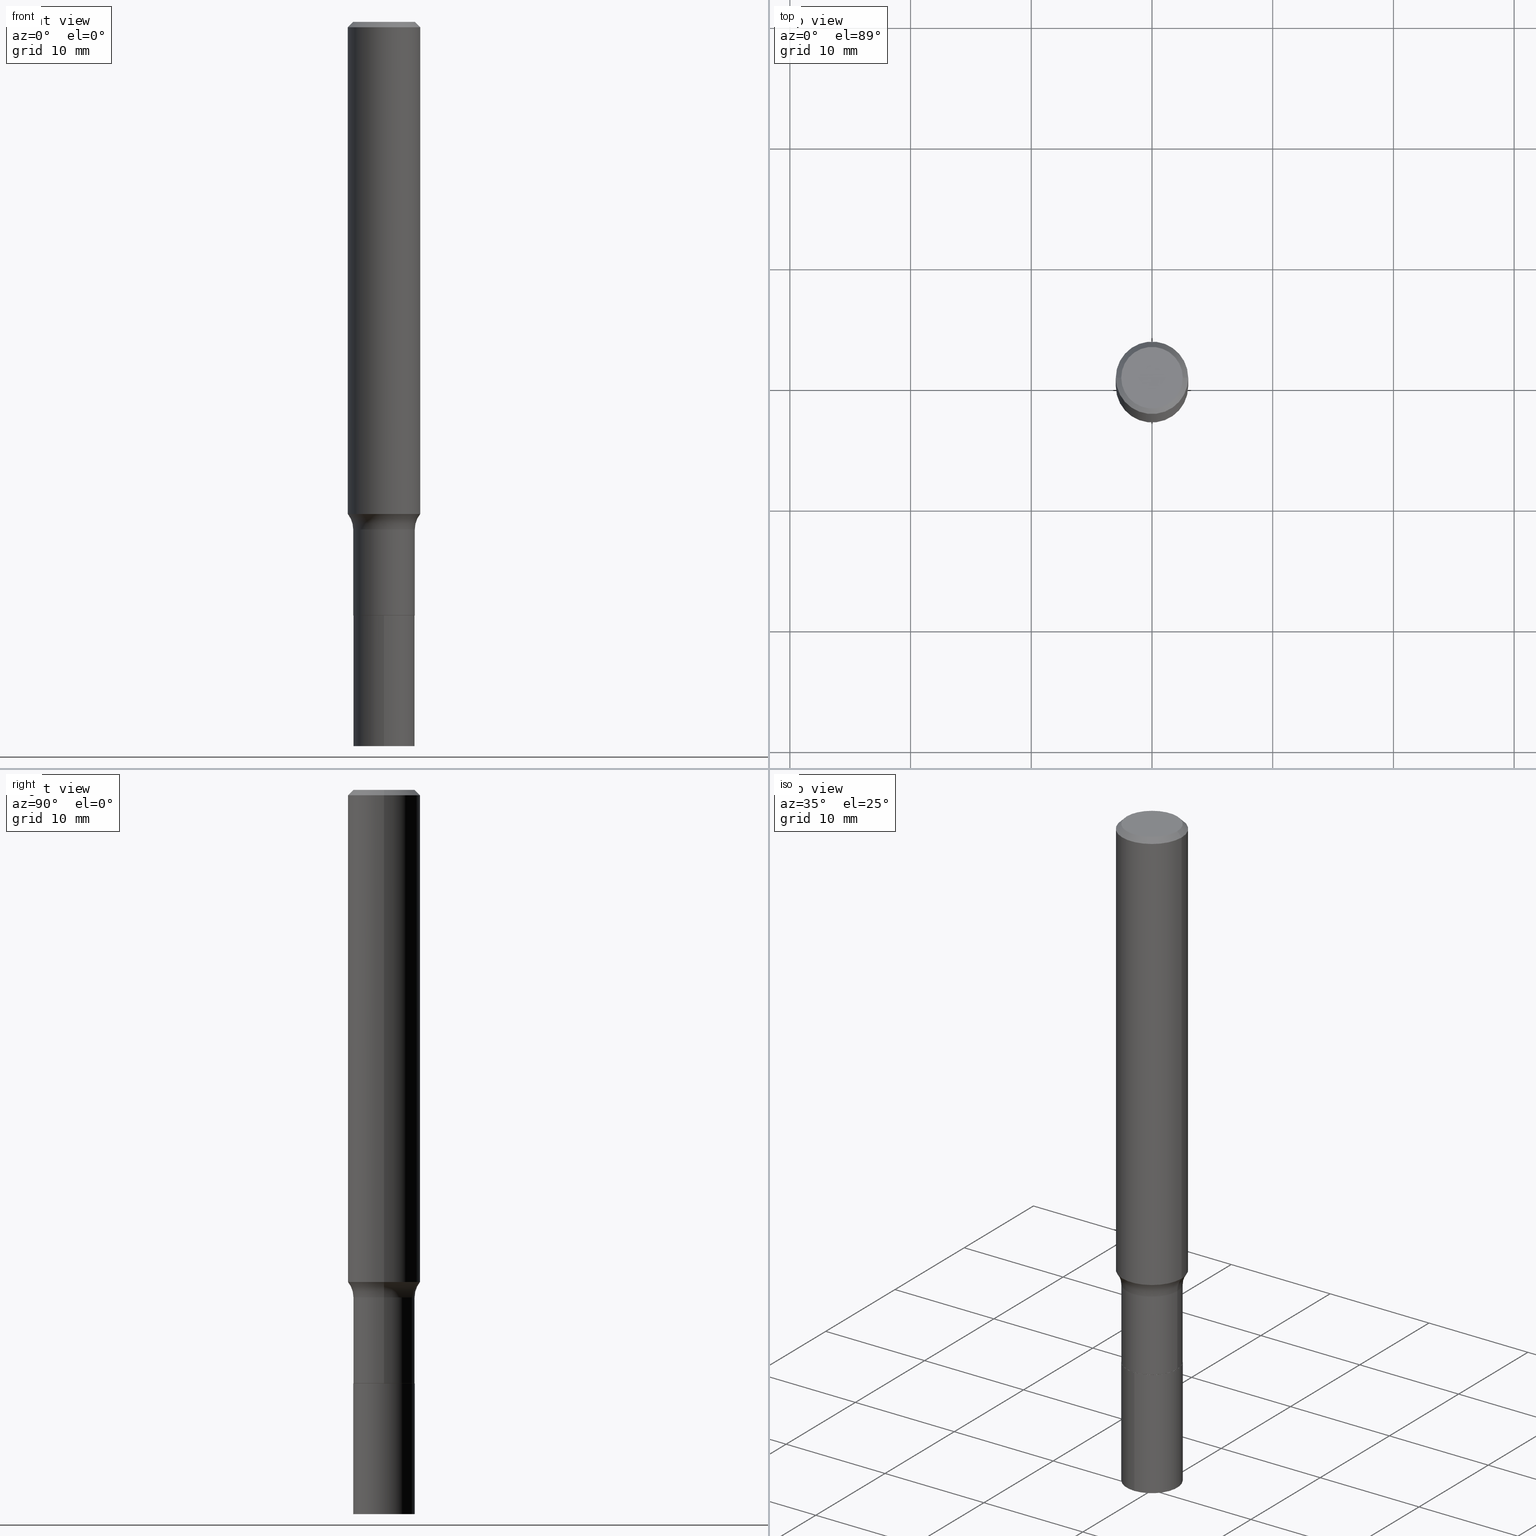
[diagram: canonical four-view strip — front | top / right | iso, engineering-drawing reading convention]
A machine part, canonical four-view strip (front | top / right | iso — engineering-drawing reading convention). The complete STEP part file that produces these views, byte-faithful:
ISO-10303-21;
HEADER;
FILE_DESCRIPTION (( 'STEP AP203' ),
    '1' );
FILE_NAME ('67096.STEP',
    '2024-04-19T15:50:10',
    ( '' ),
    ( '' ),
    'SwSTEP 2.0',
    'SolidWorks 2023',
    '' );
FILE_SCHEMA (( 'CONFIG_CONTROL_DESIGN' ));
ENDSEC;

DATA;
#1 = FACE_OUTER_BOUND ( 'NONE', #98, .T. ) ;
#2 = EDGE_CURVE ( 'NONE', #377, #160, #199, .T. ) ;
#3 = CARTESIAN_POINT ( 'NONE',  ( 0.000000000000000000, 0.000000000000000000, 0.000000000000000000 ) ) ;
#4 = AXIS2_PLACEMENT_3D ( 'NONE', #194, #254, #401 ) ;
#5 = CARTESIAN_POINT ( 'NONE',  ( 0.1004000000000000031, -7.459549880438378994E-15, -1.935700000000000420 ) ) ;
#6 =( CONVERSION_BASED_UNIT ( 'INCH', #230 ) LENGTH_UNIT ( ) NAMED_UNIT ( #173 ) );
#7 = ORIENTED_EDGE ( 'NONE', *, *, #166, .T. ) ;
#8 = APPLICATION_PROTOCOL_DEFINITION ( 'international standard', 'config_control_design', 1994, #9 ) ;
#9 = APPLICATION_CONTEXT ( 'configuration controlled 3d designs of mechanical parts and assemblies' ) ;
#10 = CARTESIAN_POINT ( 'NONE',  ( 5.792487377357313463E-29, -8.224949339710422363E-15, -2.362200000000000522 ) ) ;
#11 = COORDINATED_UNIVERSAL_TIME_OFFSET ( 5, 0, .BEHIND. ) ;
#12 = FACE_OUTER_BOUND ( 'NONE', #442, .T. ) ;
#13 = CC_DESIGN_DATE_AND_TIME_ASSIGNMENT ( #116, #333, ( #50 ) ) ;
#14 = APPROVAL_DATE_TIME ( #256, #335 ) ;
#15 = PERSON_AND_ORGANIZATION ( #341, #212 ) ;
#16 = ORIENTED_EDGE ( 'NONE', *, *, #452, .F. ) ;
#17 = DIRECTION ( 'NONE',  ( 1.000000000000000000, -6.982962677686266711E-15, 4.876176775795935793E-29 ) ) ;
#18 = ORIENTED_EDGE ( 'NONE', *, *, #221, .T. ) ;
#19 = PRODUCT_DEFINITION_SHAPE ( 'NONE', 'NONE',  #50 ) ;
#20 = CARTESIAN_POINT ( 'NONE',  ( 7.133849067031929695E-16, 0.1003999999999917597, -2.362200000000000966 ) ) ;
#21 = VECTOR ( 'NONE', #466, 39.37007874015748143 ) ;
#22 = PRODUCT_DEFINITION_FORMATION_WITH_SPECIFIED_SOURCE ( 'ANY', '', #117, .NOT_KNOWN. ) ;
#23 = CIRCLE ( 'NONE', #4, 0.1004000000000000031 ) ;
#24 = VERTEX_POINT ( 'NONE', #123 ) ;
#25 = PLANE ( 'NONE',  #306 ) ;
#26 = ORIENTED_EDGE ( 'NONE', *, *, #354, .F. ) ;
#27 = FACE_OUTER_BOUND ( 'NONE', #461, .T. ) ;
#28 = ADVANCED_FACE ( 'NONE', ( #198 ), #170, .F. ) ;
#29 = ORIENTED_EDGE ( 'NONE', *, *, #298, .T. ) ;
#30 = CARTESIAN_POINT ( 'NONE',  ( 4.734916702535661881E-29, -6.760206168268099421E-15, -1.936200000000000143 ) ) ;
#31 = AXIS2_PLACEMENT_3D ( 'NONE', #419, #351, #233 ) ;
#32 = EDGE_LOOP ( 'NONE', ( #350, #239 ) ) ;
#33 = LINE ( 'NONE', #211, #185 ) ;
#34 = ORIENTED_EDGE ( 'NONE', *, *, #36, .F. ) ;
#35 = DIRECTION ( 'NONE',  ( 1.000000000000000000, -6.982962677686267499E-15, 0.000000000000000000 ) ) ;
#36 = EDGE_CURVE ( 'NONE', #160, #458, #334, .T. ) ;
#37 = AXIS2_PLACEMENT_3D ( 'NONE', #277, #386, #451 ) ;
#38 = TOROIDAL_SURFACE ( 'NONE', #200, 0.1803999999999999770, 0.07999999999999996003 ) ;
#39 = DIRECTION ( 'NONE',  ( 1.000000000000000000, -6.982962677686262766E-15, 0.000000000000000000 ) ) ;
#40 = VERTEX_POINT ( 'NONE', #5 ) ;
#41 = CARTESIAN_POINT ( 'NONE',  ( 8.017399369065212404E-46, -1.144672146802464325E-31, -3.278471329827401435E-17 ) ) ;
#42 = ADVANCED_FACE ( 'NONE', ( #12 ), #404, .T. ) ;
#43 = FACE_OUTER_BOUND ( 'NONE', #222, .T. ) ;
#44 = ORIENTED_EDGE ( 'NONE', *, *, #36, .T. ) ;
#45 = COORDINATED_UNIVERSAL_TIME_OFFSET ( 5, 0, .BEHIND. ) ;
#46 = ORIENTED_EDGE ( 'NONE', *, *, #467, .T. ) ;
#47 = VERTEX_POINT ( 'NONE', #301 ) ;
#48 = LINE ( 'NONE', #82, #418 ) ;
#49 = CYLINDRICAL_SURFACE ( 'NONE', #151, 0.1004000000000000031 ) ;
#50 = PRODUCT_DEFINITION ( 'UNKNOWN', '', #22, #323 ) ;
#51 = PERSON_AND_ORGANIZATION_ROLE ( 'classification_officer' ) ;
#52 = APPROVAL_DATE_TIME ( #437, #430 ) ;
#53 = CIRCLE ( 'NONE', #281, 0.1003999999999999893 ) ;
#54 = LOCAL_TIME ( 11, 50, 10.00000000000000000, #228 ) ;
#55 = ORIENTED_EDGE ( 'NONE', *, *, #322, .F. ) ;
#56 = CARTESIAN_POINT ( 'NONE',  ( 4.047495421117020390E-29, -5.778750763919291461E-15, -1.655100000000000238 ) ) ;
#57 = CALENDAR_DATE ( 2024, 19, 4 ) ;
#58 = EDGE_CURVE ( 'NONE', #329, #40, #229, .T. ) ;
#59 = MANIFOLD_SOLID_BREP ( 'Body-Move/Copy2[2]', #150 ) ;
#60 = DIRECTION ( 'NONE',  ( 1.000000000000000000, -6.982962677686268288E-15, 0.000000000000000000 ) ) ;
#61 = EDGE_LOOP ( 'NONE', ( #94, #7, #331, #420 ) ) ;
#62 = AXIS2_PLACEMENT_3D ( 'NONE', #197, #327, #255 ) ;
#63 = DIRECTION ( 'NONE',  ( 2.445468806185136597E-29, -3.491481338843145583E-15, -1.000000000000000000 ) ) ;
#64 = AXIS2_PLACEMENT_3D ( 'NONE', #56, #240, #132 ) ;
#65 = ORIENTED_EDGE ( 'NONE', *, *, #396, .F. ) ;
#66 = DIRECTION ( 'NONE',  ( -6.982962677686265922E-15, -1.000000000000000000, 3.438364252212024500E-15 ) ) ;
#67 = ORIENTED_EDGE ( 'NONE', *, *, #58, .T. ) ;
#68 = DIRECTION ( 'NONE',  ( -2.445468806185136597E-29, 3.491481338843145583E-15, 1.000000000000000000 ) ) ;
#69 = CARTESIAN_POINT ( 'NONE',  ( -0.1181000000000000105, -1.993537154280403613E-15, -0.01771500000000011954 ) ) ;
#70 = CONICAL_SURFACE ( 'NONE', #232, 0.1181000000000000105, 0.7853981633974477239 ) ;
#71 = EDGE_LOOP ( 'NONE', ( #380, #336, #272, #388 ) ) ;
#72 = DIRECTION ( 'NONE',  ( -6.982962677686266711E-15, -1.000000000000000000, 2.720964137115799877E-15 ) ) ;
#73 = ADVANCED_FACE ( 'NONE', ( #88 ), #259, .T. ) ;
#74 = DIRECTION ( 'NONE',  ( 1.000000000000000000, -6.982962677686266711E-15, 4.875668750515089058E-29 ) ) ;
#75 = DIRECTION ( 'NONE',  ( 1.000000000000000000, -6.982962677686264344E-15, 0.000000000000000000 ) ) ;
#76 = AXIS2_PLACEMENT_3D ( 'NONE', #270, #169, #304 ) ;
#77 = AXIS2_PLACEMENT_3D ( 'NONE', #41, #102, #188 ) ;
#78 = CARTESIAN_POINT ( 'NONE',  ( 0.000000000000000000, 0.000000000000000000, 0.000000000000000000 ) ) ;
#79 = APPROVAL_DATE_TIME ( #110, #231 ) ;
#80 = ORIENTED_EDGE ( 'NONE', *, *, #2, .T. ) ;
#81 = VECTOR ( 'NONE', #137, 39.37007874015748143 ) ;
#82 = CARTESIAN_POINT ( 'NONE',  ( -0.1003999999999999893, 7.133849067031405103E-16, -4.938610830615924293E-30 ) ) ;
#83 = DIRECTION ( 'NONE',  ( -2.482560269534391685E-29, 3.438364252212024106E-15, 1.000000000000000000 ) ) ;
#84 = ADVANCED_FACE ( 'NONE', ( #153 ), #49, .T. ) ;
#85 = PERSON_AND_ORGANIZATION ( #341, #212 ) ;
#86 = VERTEX_POINT ( 'NONE', #126 ) ;
#87 = MECHANICAL_CONTEXT ( 'NONE', #453, 'mechanical' ) ;
#88 = FACE_OUTER_BOUND ( 'NONE', #138, .T. ) ;
#89 = AXIS2_PLACEMENT_3D ( 'NONE', #143, #317, #39 ) ;
#90 = CC_DESIGN_APPROVAL ( #335, ( #443 ) ) ;
#91 = EDGE_LOOP ( 'NONE', ( #34, #305, #213, #26 ) ) ;
#92 = ADVANCED_FACE ( 'NONE', ( #266 ), #267, .T. ) ;
#93 = DIRECTION ( 'NONE',  ( 2.438088387897960049E-29, -3.491481338843145188E-15, -1.000000000000000000 ) ) ;
#94 = ORIENTED_EDGE ( 'NONE', *, *, #467, .F. ) ;
#95 = DIRECTION ( 'NONE',  ( -1.000000000000000000, 6.982962677686267499E-15, 0.000000000000000000 ) ) ;
#96 = CARTESIAN_POINT ( 'NONE',  ( 0.000000000000000000, 0.000000000000000000, 0.000000000000000000 ) ) ;
#97 = LOCAL_TIME ( 11, 50, 10.00000000000000000, #372 ) ;
#98 = EDGE_LOOP ( 'NONE', ( #190, #46, #144, #285 ) ) ;
#99 = ADVANCED_FACE ( 'NONE', ( #43 ), #291, .F. ) ;
#100 = CARTESIAN_POINT ( 'NONE',  ( -0.1003849999999999465, 7.319105043583383731E-16, -3.278471329827902485E-17 ) ) ;
#101 = ORIENTED_EDGE ( 'NONE', *, *, #303, .T. ) ;
#102 = DIRECTION ( 'NONE',  ( -2.445468806185136597E-29, 3.491481338843145583E-15, 1.000000000000000000 ) ) ;
#103 = DIRECTION ( 'NONE',  ( -2.445468806185136597E-29, 3.491481338843145583E-15, 1.000000000000000000 ) ) ;
#104 = CLOSED_SHELL ( 'NONE', ( #73, #99, #84, #287 ) ) ;
#105 = EDGE_CURVE ( 'NONE', #174, #450, #251, .T. ) ;
#106 = DIRECTION ( 'NONE',  ( 7.105427357601001859E-15, 1.000000000000000000, -3.491481338843145583E-15 ) ) ;
#107 = DIRECTION ( 'NONE',  ( -2.445468806185136597E-29, 3.491481338843145583E-15, 1.000000000000000000 ) ) ;
#108 = CARTESIAN_POINT ( 'NONE',  ( 5.792487377357313463E-29, -8.224949339710422363E-15, -2.362200000000000522 ) ) ;
#109 = CIRCLE ( 'NONE', #89, 0.1004000000000000031 ) ;
#110 = DATE_AND_TIME ( #164, #224 ) ;
#111 = ADVANCED_BREP_SHAPE_REPRESENTATION ( '67096', ( #366, #59, #290 ), #403 ) ;
#112 = UNCERTAINTY_MEASURE_WITH_UNIT (LENGTH_MEASURE( 1.000000000000000082E-05 ), #6, 'distance_accuracy_value', 'NONE');
#113 = CARTESIAN_POINT ( 'NONE',  ( 7.133849067031982943E-16, 0.1003999999999932446, -1.936200000000000587 ) ) ;
#114 = EDGE_LOOP ( 'NONE', ( #278, #242, #413, #330 ) ) ;
#115 = SHAPE_DEFINITION_REPRESENTATION ( #19, #111 ) ;
#116 = DATE_AND_TIME ( #397, #54 ) ;
#117 = PRODUCT ( '67096', '67096', '', ( #87 ) ) ;
#118 = ORIENTED_EDGE ( 'NONE', *, *, #105, .F. ) ;
#119 = DIRECTION ( 'NONE',  ( 0.7071067811866199593, -2.468850131083015945E-15, 0.7071067811864750752 ) ) ;
#120 = EDGE_CURVE ( 'NONE', #243, #276, #206, .T. ) ;
#121 = VECTOR ( 'NONE', #307, 39.37007874015748143 ) ;
#122 = CIRCLE ( 'NONE', #282, 0.09990000000000000269 ) ;
#123 = CARTESIAN_POINT ( 'NONE',  ( -7.010894528396538437E-16, -0.1004000000000067616, -1.936199999999999921 ) ) ;
#124 = EDGE_LOOP ( 'NONE', ( #345, #309 ) ) ;
#125 = EDGE_CURVE ( 'NONE', #450, #181, #218, .T. ) ;
#126 = CARTESIAN_POINT ( 'NONE',  ( -0.1003999999999999754, -5.555220689055844179E-15, -1.655100000000000238 ) ) ;
#127 = EDGE_LOOP ( 'NONE', ( #118, #29, #196, #146 ) ) ;
#128 = AXIS2_PLACEMENT_3D ( 'NONE', #421, #376, #310 ) ;
#129 = CC_DESIGN_APPROVAL ( #430, ( #50 ) ) ;
#130 = DIRECTION ( 'NONE',  ( 1.000000000000000000, -6.982962677686262766E-15, 0.000000000000000000 ) ) ;
#131 = FACE_OUTER_BOUND ( 'NONE', #71, .T. ) ;
#132 = DIRECTION ( 'NONE',  ( 1.000000000000000000, -6.982962677686264344E-15, 0.000000000000000000 ) ) ;
#133 = CC_DESIGN_PERSON_AND_ORGANIZATION_ASSIGNMENT ( #15, #264, ( #117 ) ) ;
#134 = ORIENTED_EDGE ( 'NONE', *, *, #367, .T. ) ;
#135 = FACE_OUTER_BOUND ( 'NONE', #368, .T. ) ;
#136 = AXIS2_PLACEMENT_3D ( 'NONE', #30, #348, #455 ) ;
#137 = DIRECTION ( 'NONE',  ( -0.7071067811865471286, 2.468850131082252722E-15, -0.7071067811865479058 ) ) ;
#138 = EDGE_LOOP ( 'NONE', ( #80, #44, #16, #423 ) ) ;
#139 = CARTESIAN_POINT ( 'NONE',  ( -0.1803999999999999770, -4.496931668608071480E-15, -1.655100000000000238 ) ) ;
#140 = ADVANCED_FACE ( 'NONE', ( #135 ), #70, .T. ) ;
#141 = FACE_OUTER_BOUND ( 'NONE', #127, .T. ) ;
#142 = CIRCLE ( 'NONE', #260, 0.1004000000000000031 ) ;
#143 = CARTESIAN_POINT ( 'NONE',  ( 4.733693968132569640E-29, -6.758460427598678707E-15, -1.935700000000000420 ) ) ;
#144 = ORIENTED_EDGE ( 'NONE', *, *, #193, .F. ) ;
#145 = FACE_OUTER_BOUND ( 'NONE', #124, .T. ) ;
#146 = ORIENTED_EDGE ( 'NONE', *, *, #125, .F. ) ;
#147 = ORIENTED_EDGE ( 'NONE', *, *, #120, .F. ) ;
#148 = CC_DESIGN_DATE_AND_TIME_ASSIGNMENT ( #227, #302, ( #443 ) ) ;
#149 = DIRECTION ( 'NONE',  ( -6.982962677686266711E-15, -1.000000000000000000, 2.720964137115800271E-15 ) ) ;
#150 = CLOSED_SHELL ( 'NONE', ( #92, #205, #42, #400, #269, #176, #28, #210, #140, #241, #156, #217 ) ) ;
#151 = AXIS2_PLACEMENT_3D ( 'NONE', #373, #83, #201 ) ;
#152 = PERSON_AND_ORGANIZATION ( #341, #212 ) ;
#153 = FACE_OUTER_BOUND ( 'NONE', #91, .T. ) ;
#154 = DIRECTION ( 'NONE',  ( -2.482560269534391966E-29, 3.438364252212024500E-15, 1.000000000000000000 ) ) ;
#155 = CARTESIAN_POINT ( 'NONE',  ( 7.133849067031878419E-16, 0.1003999999999932446, -1.936200000000000587 ) ) ;
#156 = ADVANCED_FACE ( 'NONE', ( #346 ), #25, .F. ) ;
#157 = PERSON_AND_ORGANIZATION ( #341, #212 ) ;
#158 = SECURITY_CLASSIFICATION_LEVEL ( 'unclassified' ) ;
#159 = PERSON_AND_ORGANIZATION ( #341, #212 ) ;
#160 = VERTEX_POINT ( 'NONE', #20 ) ;
#161 = DIRECTION ( 'NONE',  ( -6.982962677686266711E-15, -1.000000000000000000, 2.720964137115800271E-15 ) ) ;
#162 = CONICAL_SURFACE ( 'NONE', #128, 0.1181000000000000105, 0.7853981633974477239 ) ;
#163 = APPROVAL_PERSON_ORGANIZATION ( #159, #231, #370 ) ;
#164 = CALENDAR_DATE ( 2024, 19, 4 ) ;
#165 = CARTESIAN_POINT ( 'NONE',  ( 0.09990000000000000269, -7.457804139768958280E-15, -1.936200000000000143 ) ) ;
#166 = EDGE_CURVE ( 'NONE', #47, #40, #410, .T. ) ;
#167 = CALENDAR_DATE ( 2024, 19, 4 ) ;
#168 = ORIENTED_EDGE ( 'NONE', *, *, #303, .F. ) ;
#169 = DIRECTION ( 'NONE',  ( -2.445468806185136597E-29, 3.491481338843145583E-15, 1.000000000000000000 ) ) ;
#170 = TOROIDAL_SURFACE ( 'NONE', #62, 0.1803999999999999770, 0.07999999999999996003 ) ;
#171 = AXIS2_PLACEMENT_3D ( 'NONE', #178, #314, #60 ) ;
#172 = CARTESIAN_POINT ( 'NONE',  ( -0.09990000000000000269, -6.047724748069649003E-15, -1.936200000000000143 ) ) ;
#173 = DIMENSIONAL_EXPONENTS ( 1.000000000000000000, 0.000000000000000000, 0.000000000000000000, 0.000000000000000000, 0.000000000000000000, 0.000000000000000000, 0.000000000000000000 ) ;
#174 = VERTEX_POINT ( 'NONE', #209 ) ;
#175 = DIRECTION ( 'NONE',  ( -2.438088387897960049E-29, 3.491481338843145188E-15, 1.000000000000000000 ) ) ;
#176 = ADVANCED_FACE ( 'NONE', ( #454 ), #412, .T. ) ;
#177 = DIRECTION ( 'NONE',  ( -1.000000000000000000, 6.982962677686265922E-15, -4.876176775795935793E-29 ) ) ;
#178 = CARTESIAN_POINT ( 'NONE',  ( 3.924765286476451324E-29, -5.603524658508559788E-15, -1.604913248760255540 ) ) ;
#179 = AXIS2_PLACEMENT_3D ( 'NONE', #207, #236, #268 ) ;
#180 = CIRCLE ( 'NONE', #77, 0.1003849999999999465 ) ;
#181 = VERTEX_POINT ( 'NONE', #339 ) ;
#182 = CARTESIAN_POINT ( 'NONE',  ( 0.1181000000000002048, -6.428212550743309629E-15, -1.604913248760255540 ) ) ;
#183 = LINE ( 'NONE', #245, #21 ) ;
#184 = DIRECTION ( 'NONE',  ( -2.445468806185136597E-29, 3.491481338843145583E-15, 1.000000000000000000 ) ) ;
#185 = VECTOR ( 'NONE', #355, 39.37007874015748143 ) ;
#186 = CYLINDRICAL_SURFACE ( 'NONE', #456, 0.1003999999999999893 ) ;
#187 = CC_DESIGN_PERSON_AND_ORGANIZATION_ASSIGNMENT ( #157, #51, ( #443 ) ) ;
#188 = DIRECTION ( 'NONE',  ( 1.000000000000000000, -6.982962677686266711E-15, 4.875668750515089058E-29 ) ) ;
#189 = PERSON_AND_ORGANIZATION_ROLE ( 'creator' ) ;
#190 = ORIENTED_EDGE ( 'NONE', *, *, #332, .T. ) ;
#191 = AXIS2_PLACEMENT_3D ( 'NONE', #462, #324, #75 ) ;
#192 = LOCAL_TIME ( 11, 50, 10.00000000000000000, #234 ) ;
#193 = EDGE_CURVE ( 'NONE', #181, #86, #326, .T. ) ;
#194 = CARTESIAN_POINT ( 'NONE',  ( 4.734916702535661881E-29, -6.760206168268099421E-15, -1.936200000000000143 ) ) ;
#195 = ORIENTED_EDGE ( 'NONE', *, *, #2, .F. ) ;
#196 = ORIENTED_EDGE ( 'NONE', *, *, #283, .T. ) ;
#197 = CARTESIAN_POINT ( 'NONE',  ( 4.047495421117020390E-29, -5.778750763919291461E-15, -1.655100000000000238 ) ) ;
#198 = FACE_OUTER_BOUND ( 'NONE', #114, .T. ) ;
#199 = CIRCLE ( 'NONE', #362, 0.1003999999999999893 ) ;
#200 = AXIS2_PLACEMENT_3D ( 'NONE', #284, #184, #428 ) ;
#201 = DIRECTION ( 'NONE',  ( -6.982962677686266711E-15, -1.000000000000000000, 2.720964137115799877E-15 ) ) ;
#202 = CARTESIAN_POINT ( 'NONE',  ( 1.288414047981456166E-29, -1.467503870331022184E-14, -2.362200000000000077 ) ) ;
#203 = EDGE_LOOP ( 'NONE', ( #407, #399, #296, #147 ) ) ;
#204 = LINE ( 'NONE', #342, #121 ) ;
#205 = ADVANCED_FACE ( 'NONE', ( #271 ), #162, .T. ) ;
#206 = LINE ( 'NONE', #274, #81 ) ;
#207 = CARTESIAN_POINT ( 'NONE',  ( 3.924765286476451324E-29, -5.603524658508559788E-15, -1.604913248760255540 ) ) ;
#208 = VERTEX_POINT ( 'NONE', #172 ) ;
#209 = CARTESIAN_POINT ( 'NONE',  ( -0.1181000000000002048, -4.764373687575879225E-15, -1.604913248760255540 ) ) ;
#210 = ADVANCED_FACE ( 'NONE', ( #131 ), #416, .T. ) ;
#211 = CARTESIAN_POINT ( 'NONE',  ( 0.1181000000000000105, -8.720764054544248225E-16, -0.01771500000000011954 ) ) ;
#212 = ORGANIZATION ( 'UNSPECIFIED', 'UNSPECIFIED', '' ) ;
#213 = ORIENTED_EDGE ( 'NONE', *, *, #459, .T. ) ;
#214 = DIRECTION ( 'NONE',  ( -2.445468806185136597E-29, 3.491481338843145583E-15, 1.000000000000000000 ) ) ;
#215 = CARTESIAN_POINT ( 'NONE',  ( 0.09990000000000000269, -7.457804139768958280E-15, -1.936200000000000143 ) ) ;
#216 = DIRECTION ( 'NONE',  ( -2.445468806185136877E-29, 3.491481338843145188E-15, 1.000000000000000000 ) ) ;
#217 = ADVANCED_FACE ( 'NONE', ( #378 ), #313, .T. ) ;
#218 = CIRCLE ( 'NONE', #37, 0.07999999999999996003 ) ;
#219 = DIRECTION ( 'NONE',  ( 2.482560269534390844E-29, -3.438364252212024500E-15, -1.000000000000000000 ) ) ;
#220 = PERSON_AND_ORGANIZATION ( #341, #212 ) ;
#221 = EDGE_CURVE ( 'NONE', #208, #329, #417, .T. ) ;
#222 = EDGE_LOOP ( 'NONE', ( #195, #55 ) ) ;
#223 = AXIS2_PLACEMENT_3D ( 'NONE', #248, #391, #74 ) ;
#224 = LOCAL_TIME ( 11, 50, 10.00000000000000000, #11 ) ;
#225 = CARTESIAN_POINT ( 'NONE',  ( -7.010894528396538437E-16, -0.1004000000000067616, -1.936199999999999921 ) ) ;
#226 = DIRECTION ( 'NONE',  ( -2.445468806185136597E-29, 3.491481338843145583E-15, 1.000000000000000000 ) ) ;
#227 = DATE_AND_TIME ( #292, #192 ) ;
#228 = COORDINATED_UNIVERSAL_TIME_OFFSET ( 5, 0, .BEHIND. ) ;
#229 = LINE ( 'NONE', #165, #357 ) ;
#230 = LENGTH_MEASURE_WITH_UNIT ( LENGTH_MEASURE( 0.02539999999999999897 ), #328 );
#231 = APPROVAL ( #261, 'UNSPECIFIED' ) ;
#232 = AXIS2_PLACEMENT_3D ( 'NONE', #379, #63, #95 ) ;
#233 = DIRECTION ( 'NONE',  ( 1.000000000000000000, -6.982962677686266711E-15, 4.876176775795935232E-29 ) ) ;
#234 = COORDINATED_UNIVERSAL_TIME_OFFSET ( 5, 0, .BEHIND. ) ;
#235 = PLANE ( 'NONE',  #465 ) ;
#236 = DIRECTION ( 'NONE',  ( -2.445468806185136597E-29, 3.491481338843145583E-15, 1.000000000000000000 ) ) ;
#237 = VECTOR ( 'NONE', #216, 39.37007874015748143 ) ;
#238 = CARTESIAN_POINT ( 'NONE',  ( 4.734916702535661881E-29, -6.760206168268099421E-15, -1.936200000000000143 ) ) ;
#239 = ORIENTED_EDGE ( 'NONE', *, *, #221, .F. ) ;
#240 = DIRECTION ( 'NONE',  ( -2.445468806185136597E-29, 3.491481338843145583E-15, 1.000000000000000000 ) ) ;
#241 = ADVANCED_FACE ( 'NONE', ( #27 ), #235, .F. ) ;
#242 = ORIENTED_EDGE ( 'NONE', *, *, #247, .F. ) ;
#243 = VERTEX_POINT ( 'NONE', #100 ) ;
#244 = CARTESIAN_POINT ( 'NONE',  ( 4.332147990156999371E-31, -6.185159191760674092E-17, -0.01771500000000011954 ) ) ;
#245 = CARTESIAN_POINT ( 'NONE',  ( 0.1003999999999999893, -7.010894528397010768E-16, 4.895681482899118454E-30 ) ) ;
#246 = DIRECTION ( 'NONE',  ( 6.982962677686265922E-15, 1.000000000000000000, -3.438364252212024500E-15 ) ) ;
#247 = EDGE_CURVE ( 'NONE', #450, #174, #343, .T. ) ;
#248 = CARTESIAN_POINT ( 'NONE',  ( 8.017399369065212404E-46, -1.144672146802464325E-31, -3.278471329827401435E-17 ) ) ;
#249 = CARTESIAN_POINT ( 'NONE',  ( -0.09990000000000000269, -6.050373975243759415E-15, -1.936200000000000143 ) ) ;
#250 = AXIS2_PLACEMENT_3D ( 'NONE', #446, #438, #265 ) ;
#251 = CIRCLE ( 'NONE', #179, 0.1181000000000002048 ) ;
#252 = APPLICATION_PROTOCOL_DEFINITION ( 'international standard', 'config_control_design', 1994, #453 ) ;
#253 = EDGE_CURVE ( 'NONE', #174, #276, #204, .T. ) ;
#254 = DIRECTION ( 'NONE',  ( -2.482560269534391685E-29, 3.438364252212024106E-15, 1.000000000000000000 ) ) ;
#255 = DIRECTION ( 'NONE',  ( 1.000000000000000000, -6.982962677686266711E-15, 4.883557194083112901E-29 ) ) ;
#256 = DATE_AND_TIME ( #57, #382 ) ;
#257 =( NAMED_UNIT ( * ) PLANE_ANGLE_UNIT ( ) SI_UNIT ( $, .RADIAN. ) );
#258 = ORIENTED_EDGE ( 'NONE', *, *, #422, .T. ) ;
#259 = CYLINDRICAL_SURFACE ( 'NONE', #426, 0.1004000000000000031 ) ;
#260 = AXIS2_PLACEMENT_3D ( 'NONE', #390, #468, #72 ) ;
#261 = APPROVAL_STATUS ( 'not_yet_approved' ) ;
#262 = EDGE_LOOP ( 'NONE', ( #275, #385, #279, #435 ) ) ;
#263 = CC_DESIGN_PERSON_AND_ORGANIZATION_ASSIGNMENT ( #152, #434, ( #22 ) ) ;
#264 = PERSON_AND_ORGANIZATION_ROLE ( 'design_owner' ) ;
#265 = DIRECTION ( 'NONE',  ( 1.000000000000000000, -6.982962677686266711E-15, 4.876176775795935793E-29 ) ) ;
#266 = FACE_OUTER_BOUND ( 'NONE', #262, .T. ) ;
#267 = CONICAL_SURFACE ( 'NONE', #374, 0.09990000000000000269, 0.7853981633975507526 ) ;
#268 = DIRECTION ( 'NONE',  ( 1.000000000000000000, -6.982962677686268288E-15, 0.000000000000000000 ) ) ;
#269 = ADVANCED_FACE ( 'NONE', ( #1 ), #186, .T. ) ;
#270 = CARTESIAN_POINT ( 'NONE',  ( 4.734916702535661881E-29, -6.760206168268099421E-15, -1.936200000000000143 ) ) ;
#271 = FACE_OUTER_BOUND ( 'NONE', #203, .T. ) ;
#272 = ORIENTED_EDGE ( 'NONE', *, *, #396, .T. ) ;
#273 = AXIS2_PLACEMENT_3D ( 'NONE', #96, #384, #17 ) ;
#274 = CARTESIAN_POINT ( 'NONE',  ( -0.1181000000000000105, 7.628363003171413738E-16, -0.01771500000000011954 ) ) ;
#275 = ORIENTED_EDGE ( 'NONE', *, *, #415, .T. ) ;
#276 = VERTEX_POINT ( 'NONE', #69 ) ;
#277 = CARTESIAN_POINT ( 'NONE',  ( 0.1803999999999999770, -7.038477230973894190E-15, -1.655100000000000238 ) ) ;
#278 = ORIENTED_EDGE ( 'NONE', *, *, #298, .F. ) ;
#279 = ORIENTED_EDGE ( 'NONE', *, *, #332, .F. ) ;
#280 = DIRECTION ( 'NONE',  ( 1.000000000000000000, -6.982962677686266711E-15, 4.876176775795935232E-29 ) ) ;
#281 = AXIS2_PLACEMENT_3D ( 'NONE', #108, #315, #149 ) ;
#282 = AXIS2_PLACEMENT_3D ( 'NONE', #394, #353, #360 ) ;
#283 = EDGE_CURVE ( 'NONE', #86, #181, #432, .T. ) ;
#284 = CARTESIAN_POINT ( 'NONE',  ( 4.047495421117020390E-29, -5.778750763919291461E-15, -1.655100000000000238 ) ) ;
#285 = ORIENTED_EDGE ( 'NONE', *, *, #318, .F. ) ;
#286 = LINE ( 'NONE', #356, #237 ) ;
#287 = ADVANCED_FACE ( 'NONE', ( #145 ), #424, .F. ) ;
#288 = CARTESIAN_POINT ( 'NONE',  ( 0.1003849999999999465, -7.803837484803598359E-16, -3.278471329826883745E-17 ) ) ;
#289 = AXIS2_PLACEMENT_3D ( 'NONE', #431, #103, #321 ) ;
#290 = AXIS2_PLACEMENT_3D ( 'NONE', #3, #363, #433 ) ;
#291 = PLANE ( 'NONE',  #402 ) ;
#292 = CALENDAR_DATE ( 2024, 19, 4 ) ;
#293 = APPROVAL_STATUS ( 'not_yet_approved' ) ;
#294 = DIRECTION ( 'NONE',  ( -2.482560269534391966E-29, 3.438364252212024500E-15, 1.000000000000000000 ) ) ;
#295 = PERSON_AND_ORGANIZATION ( #341, #212 ) ;
#296 = ORIENTED_EDGE ( 'NONE', *, *, #311, .T. ) ;
#297 = AXIS2_PLACEMENT_3D ( 'NONE', #414, #68, #130 ) ;
#298 = EDGE_CURVE ( 'NONE', #174, #86, #364, .T. ) ;
#299 = PERSON_AND_ORGANIZATION_ROLE ( 'creator' ) ;
#300 = DIRECTION ( 'NONE',  ( -2.482560269534391685E-29, 3.438364252212024106E-15, 1.000000000000000000 ) ) ;
#301 = CARTESIAN_POINT ( 'NONE',  ( -0.1004000000000000031, -5.555220689055844179E-15, -1.935700000000000420 ) ) ;
#302 = DATE_TIME_ROLE ( 'classification_date' ) ;
#303 = EDGE_CURVE ( 'NONE', #243, #429, #393, .T. ) ;
#304 = DIRECTION ( 'NONE',  ( 1.000000000000000000, -6.982962677686267499E-15, 0.000000000000000000 ) ) ;
#305 = ORIENTED_EDGE ( 'NONE', *, *, #322, .T. ) ;
#306 = AXIS2_PLACEMENT_3D ( 'NONE', #238, #175, #308 ) ;
#307 = DIRECTION ( 'NONE',  ( -2.445468806185136877E-29, 3.491481338843145188E-15, 1.000000000000000000 ) ) ;
#308 = DIRECTION ( 'NONE',  ( 1.000000000000000000, -6.982962677686265922E-15, 4.876176775795935793E-29 ) ) ;
#309 = ORIENTED_EDGE ( 'NONE', *, *, #354, .T. ) ;
#310 = DIRECTION ( 'NONE',  ( -1.000000000000000000, 6.982962677686267499E-15, 0.000000000000000000 ) ) ;
#311 = EDGE_CURVE ( 'NONE', #347, #276, #449, .T. ) ;
#312 = ORIENTED_EDGE ( 'NONE', *, *, #120, .T. ) ;
#313 = CONICAL_SURFACE ( 'NONE', #136, 0.09990000000000000269, 0.7853981633975507526 ) ;
#314 = DIRECTION ( 'NONE',  ( -2.445468806185136597E-29, 3.491481338843145583E-15, 1.000000000000000000 ) ) ;
#315 = DIRECTION ( 'NONE',  ( -2.482560269534391685E-29, 3.438364252212024106E-15, 1.000000000000000000 ) ) ;
#316 = EDGE_LOOP ( 'NONE', ( #447, #18, #67, #464 ) ) ;
#317 = DIRECTION ( 'NONE',  ( -2.445468806185136597E-29, 3.491481338843145583E-15, 1.000000000000000000 ) ) ;
#318 = EDGE_CURVE ( 'NONE', #40, #181, #183, .T. ) ;
#319 = CARTESIAN_POINT ( 'NONE',  ( 4.734916702535661881E-29, -6.760206168268099421E-15, -1.936200000000000143 ) ) ;
#320 = APPROVAL_PERSON_ORGANIZATION ( #436, #335, #369 ) ;
#321 = DIRECTION ( 'NONE',  ( 1.000000000000000000, -6.982962677686267499E-15, 0.000000000000000000 ) ) ;
#322 = EDGE_CURVE ( 'NONE', #160, #377, #53, .T. ) ;
#323 = DESIGN_CONTEXT ( 'detailed design', #9, 'design' ) ;
#324 = DIRECTION ( 'NONE',  ( -2.445468806185136597E-29, 3.491481338843145583E-15, 1.000000000000000000 ) ) ;
#325 =( NAMED_UNIT ( * ) SI_UNIT ( $, .STERADIAN. ) SOLID_ANGLE_UNIT ( ) );
#326 = CIRCLE ( 'NONE', #64, 0.1003999999999999754 ) ;
#327 = DIRECTION ( 'NONE',  ( -2.445468806185136597E-29, 3.491481338843145583E-15, 1.000000000000000000 ) ) ;
#328 =( LENGTH_UNIT ( ) NAMED_UNIT ( * ) SI_UNIT ( $, .METRE. ) );
#329 = VERTEX_POINT ( 'NONE', #215 ) ;
#330 = ORIENTED_EDGE ( 'NONE', *, *, #193, .T. ) ;
#331 = ORIENTED_EDGE ( 'NONE', *, *, #318, .T. ) ;
#332 = EDGE_CURVE ( 'NONE', #40, #47, #109, .T. ) ;
#333 = DATE_TIME_ROLE ( 'creation_date' ) ;
#334 = LINE ( 'NONE', #155, #439 ) ;
#335 = APPROVAL ( #337, 'UNSPECIFIED' ) ;
#336 = ORIENTED_EDGE ( 'NONE', *, *, #105, .T. ) ;
#337 = APPROVAL_STATUS ( 'not_yet_approved' ) ;
#338 = CC_DESIGN_PERSON_AND_ORGANIZATION_ASSIGNMENT ( #295, #299, ( #50 ) ) ;
#339 = CARTESIAN_POINT ( 'NONE',  ( 0.1003999999999999754, -6.479840216758992537E-15, -1.655100000000000238 ) ) ;
#340 = ORIENTED_EDGE ( 'NONE', *, *, #375, .F. ) ;
#341 = PERSON ( 'UNSPECIFIED', 'UNSPECIFIED', 'UNSPECIFIED', ('UNSPECIFIED'), ('UNSPECIFIED'), ('UNSPECIFIED') ) ;
#342 = CARTESIAN_POINT ( 'NONE',  ( -0.1181000000000001077, 8.391509709326790846E-16, -5.809262341591049389E-30 ) ) ;
#343 = CIRCLE ( 'NONE', #171, 0.1181000000000002048 ) ;
#344 = CC_DESIGN_SECURITY_CLASSIFICATION ( #443, ( #22 ) ) ;
#345 = ORIENTED_EDGE ( 'NONE', *, *, #452, .T. ) ;
#346 = FACE_OUTER_BOUND ( 'NONE', #32, .T. ) ;
#347 = VERTEX_POINT ( 'NONE', #392 ) ;
#348 = DIRECTION ( 'NONE',  ( -2.445468806185136597E-29, 3.491481338843145583E-15, 1.000000000000000000 ) ) ;
#349 = CC_DESIGN_PERSON_AND_ORGANIZATION_ASSIGNMENT ( #220, #189, ( #22 ) ) ;
#350 = ORIENTED_EDGE ( 'NONE', *, *, #415, .F. ) ;
#351 = DIRECTION ( 'NONE',  ( -2.445468806185136597E-29, 3.491481338843145583E-15, 1.000000000000000000 ) ) ;
#352 = CIRCLE ( 'NONE', #381, 0.1181000000000000105 ) ;
#353 = DIRECTION ( 'NONE',  ( -2.445468806185136597E-29, 3.491481338843145583E-15, 1.000000000000000000 ) ) ;
#354 = EDGE_CURVE ( 'NONE', #458, #24, #142, .T. ) ;
#355 = DIRECTION ( 'NONE',  ( 0.7071067811865471286, -7.319954787623254468E-15, -0.7071067811865479058 ) ) ;
#356 = CARTESIAN_POINT ( 'NONE',  ( 0.1181000000000001077, -8.246878922347488542E-16, 5.758764772215005345E-30 ) ) ;
#357 = VECTOR ( 'NONE', #119, 39.37007874015748143 ) ;
#358 = DIRECTION ( 'NONE',  ( -0.7071067811866199593, 7.493145998870616062E-15, 0.7071067811864750752 ) ) ;
#359 = VECTOR ( 'NONE', #154, 39.37007874015748143 ) ;
#360 = DIRECTION ( 'NONE',  ( 1.000000000000000000, -6.982962677686267499E-15, 0.000000000000000000 ) ) ;
#361 = DIRECTION ( 'NONE',  ( 1.000000000000000000, -6.982962677686267499E-15, 0.000000000000000000 ) ) ;
#362 = AXIS2_PLACEMENT_3D ( 'NONE', #10, #444, #161 ) ;
#363 = DIRECTION ( 'NONE',  ( 0.000000000000000000, 0.000000000000000000, 1.000000000000000000 ) ) ;
#364 = CIRCLE ( 'NONE', #425, 0.07999999999999996003 ) ;
#365 = ORIENTED_EDGE ( 'NONE', *, *, #247, .T. ) ;
#366 = MANIFOLD_SOLID_BREP ( 'Body-Move/Copy2[1]', #104 ) ;
#367 = EDGE_CURVE ( 'NONE', #276, #347, #352, .T. ) ;
#368 = EDGE_LOOP ( 'NONE', ( #340, #168, #312, #134 ) ) ;
#369 = APPROVAL_ROLE ( '' ) ;
#370 = APPROVAL_ROLE ( '' ) ;
#371 = CARTESIAN_POINT ( 'NONE',  ( 4.734916702535661881E-29, -6.760206168268099421E-15, -1.936200000000000143 ) ) ;
#372 = COORDINATED_UNIVERSAL_TIME_OFFSET ( 5, 0, .BEHIND. ) ;
#373 = CARTESIAN_POINT ( 'NONE',  ( 4.734916702535661881E-29, -6.760206168268099421E-15, -1.936200000000000143 ) ) ;
#374 = AXIS2_PLACEMENT_3D ( 'NONE', #408, #226, #361 ) ;
#375 = EDGE_CURVE ( 'NONE', #429, #347, #33, .T. ) ;
#376 = DIRECTION ( 'NONE',  ( 2.445468806185136597E-29, -3.491481338843145583E-15, -1.000000000000000000 ) ) ;
#377 = VERTEX_POINT ( 'NONE', #463 ) ;
#378 = FACE_OUTER_BOUND ( 'NONE', #316, .T. ) ;
#379 = CARTESIAN_POINT ( 'NONE',  ( 4.332147990156999371E-31, -6.185159191760674092E-17, -0.01771500000000011954 ) ) ;
#380 = ORIENTED_EDGE ( 'NONE', *, *, #253, .F. ) ;
#381 = AXIS2_PLACEMENT_3D ( 'NONE', #244, #214, #35 ) ;
#382 = LOCAL_TIME ( 11, 50, 10.00000000000000000, #45 ) ;
#383 = ORIENTED_EDGE ( 'NONE', *, *, #253, .T. ) ;
#384 = DIRECTION ( 'NONE',  ( -2.445468806185136597E-29, 3.491481338843145583E-15, 1.000000000000000000 ) ) ;
#385 = ORIENTED_EDGE ( 'NONE', *, *, #406, .T. ) ;
#386 = DIRECTION ( 'NONE',  ( -6.982962677686266711E-15, -1.000000000000000000, 3.491481338843145583E-15 ) ) ;
#387 = DIRECTION ( 'NONE',  ( -1.000000000000000000, 7.105427357601001859E-15, 0.000000000000000000 ) ) ;
#388 = ORIENTED_EDGE ( 'NONE', *, *, #367, .F. ) ;
#389 = APPROVAL_PERSON_ORGANIZATION ( #85, #430, #405 ) ;
#390 = CARTESIAN_POINT ( 'NONE',  ( 4.734916702535661881E-29, -6.760206168268099421E-15, -1.936200000000000143 ) ) ;
#391 = DIRECTION ( 'NONE',  ( -2.445468806185136597E-29, 3.491481338843145583E-15, 1.000000000000000000 ) ) ;
#392 = CARTESIAN_POINT ( 'NONE',  ( 0.1181000000000000105, -8.865394841523550528E-16, -0.01771500000000011954 ) ) ;
#393 = CIRCLE ( 'NONE', #223, 0.1003849999999999465 ) ;
#394 = CARTESIAN_POINT ( 'NONE',  ( 4.734916702535661881E-29, -6.760206168268099421E-15, -1.936200000000000143 ) ) ;
#395 = VECTOR ( 'NONE', #358, 39.37007874015748143 ) ;
#396 = EDGE_CURVE ( 'NONE', #450, #347, #286, .T. ) ;
#397 = CALENDAR_DATE ( 2024, 19, 4 ) ;
#398 = LINE ( 'NONE', #225, #359 ) ;
#399 = ORIENTED_EDGE ( 'NONE', *, *, #375, .T. ) ;
#400 = ADVANCED_FACE ( 'NONE', ( #141 ), #38, .F. ) ;
#401 = DIRECTION ( 'NONE',  ( -6.982962677686266711E-15, -1.000000000000000000, 2.720964137115799877E-15 ) ) ;
#402 = AXIS2_PLACEMENT_3D ( 'NONE', #202, #460, #66 ) ;
#403 =( GEOMETRIC_REPRESENTATION_CONTEXT ( 3 ) GLOBAL_UNCERTAINTY_ASSIGNED_CONTEXT ( ( #112 ) ) GLOBAL_UNIT_ASSIGNED_CONTEXT ( ( #6, #257, #325 ) ) REPRESENTATION_CONTEXT ( 'NONE', 'WORKASPACE' ) );
#404 = CYLINDRICAL_SURFACE ( 'NONE', #250, 0.1181000000000001077 ) ;
#405 = APPROVAL_ROLE ( '' ) ;
#406 = EDGE_CURVE ( 'NONE', #208, #47, #427, .T. ) ;
#407 = ORIENTED_EDGE ( 'NONE', *, *, #422, .F. ) ;
#408 = CARTESIAN_POINT ( 'NONE',  ( 4.734916702535661881E-29, -6.760206168268099421E-15, -1.936200000000000143 ) ) ;
#409 = PRODUCT_RELATED_PRODUCT_CATEGORY ( 'detail', '', ( #117 ) ) ;
#410 = CIRCLE ( 'NONE', #297, 0.1004000000000000031 ) ;
#411 = ORIENTED_EDGE ( 'NONE', *, *, #311, .F. ) ;
#412 = CYLINDRICAL_SURFACE ( 'NONE', #31, 0.1003999999999999893 ) ;
#413 = ORIENTED_EDGE ( 'NONE', *, *, #125, .T. ) ;
#414 = CARTESIAN_POINT ( 'NONE',  ( 4.733693968132569640E-29, -6.758460427598678707E-15, -1.935700000000000420 ) ) ;
#415 = EDGE_CURVE ( 'NONE', #329, #208, #122, .T. ) ;
#416 = CYLINDRICAL_SURFACE ( 'NONE', #273, 0.1181000000000001077 ) ;
#417 = CIRCLE ( 'NONE', #76, 0.09990000000000000269 ) ;
#418 = VECTOR ( 'NONE', #440, 39.37007874015748143 ) ;
#419 = CARTESIAN_POINT ( 'NONE',  ( 0.000000000000000000, 0.000000000000000000, 0.000000000000000000 ) ) ;
#420 = ORIENTED_EDGE ( 'NONE', *, *, #283, .F. ) ;
#421 = CARTESIAN_POINT ( 'NONE',  ( 4.332147990156999371E-31, -6.185159191760674092E-17, -0.01771500000000011954 ) ) ;
#422 = EDGE_CURVE ( 'NONE', #429, #243, #180, .T. ) ;
#423 = ORIENTED_EDGE ( 'NONE', *, *, #459, .F. ) ;
#424 = PLANE ( 'NONE',  #441 ) ;
#425 = AXIS2_PLACEMENT_3D ( 'NONE', #139, #106, #387 ) ;
#426 = AXIS2_PLACEMENT_3D ( 'NONE', #371, #300, #445 ) ;
#427 = LINE ( 'NONE', #249, #395 ) ;
#428 = DIRECTION ( 'NONE',  ( 1.000000000000000000, -6.982962677686266711E-15, 4.883557194083112901E-29 ) ) ;
#429 = VERTEX_POINT ( 'NONE', #288 ) ;
#430 = APPROVAL ( #293, 'UNSPECIFIED' ) ;
#431 = CARTESIAN_POINT ( 'NONE',  ( 4.332147990156999371E-31, -6.185159191760674092E-17, -0.01771500000000011954 ) ) ;
#432 = CIRCLE ( 'NONE', #191, 0.1003999999999999754 ) ;
#433 = DIRECTION ( 'NONE',  ( 1.000000000000000000, 0.000000000000000000, 0.000000000000000000 ) ) ;
#434 = PERSON_AND_ORGANIZATION_ROLE ( 'design_supplier' ) ;
#435 = ORIENTED_EDGE ( 'NONE', *, *, #58, .F. ) ;
#436 = PERSON_AND_ORGANIZATION ( #341, #212 ) ;
#437 = DATE_AND_TIME ( #167, #97 ) ;
#438 = DIRECTION ( 'NONE',  ( -2.445468806185136597E-29, 3.491481338843145583E-15, 1.000000000000000000 ) ) ;
#439 = VECTOR ( 'NONE', #294, 39.37007874015748143 ) ;
#440 = DIRECTION ( 'NONE',  ( -2.445468806185136877E-29, 3.491481338843145188E-15, 1.000000000000000000 ) ) ;
#441 = AXIS2_PLACEMENT_3D ( 'NONE', #319, #219, #246 ) ;
#442 = EDGE_LOOP ( 'NONE', ( #365, #383, #411, #65 ) ) ;
#443 = SECURITY_CLASSIFICATION ( '', '', #158 ) ;
#444 = DIRECTION ( 'NONE',  ( -2.482560269534391685E-29, 3.438364252212024106E-15, 1.000000000000000000 ) ) ;
#445 = DIRECTION ( 'NONE',  ( -6.982962677686266711E-15, -1.000000000000000000, 2.720964137115799877E-15 ) ) ;
#446 = CARTESIAN_POINT ( 'NONE',  ( 0.000000000000000000, 0.000000000000000000, 0.000000000000000000 ) ) ;
#447 = ORIENTED_EDGE ( 'NONE', *, *, #406, .F. ) ;
#448 = CARTESIAN_POINT ( 'NONE',  ( 4.008699684532606202E-46, -5.723360734012321624E-32, -1.639235664913700718E-17 ) ) ;
#449 = CIRCLE ( 'NONE', #289, 0.1181000000000000105 ) ;
#450 = VERTEX_POINT ( 'NONE', #182 ) ;
#451 = DIRECTION ( 'NONE',  ( 1.000000000000000000, -6.982962677686262766E-15, 0.000000000000000000 ) ) ;
#452 = EDGE_CURVE ( 'NONE', #24, #458, #23, .T. ) ;
#453 = APPLICATION_CONTEXT ( 'configuration controlled 3d designs of mechanical parts and assemblies' ) ;
#454 = FACE_OUTER_BOUND ( 'NONE', #61, .T. ) ;
#455 = DIRECTION ( 'NONE',  ( 1.000000000000000000, -6.982962677686267499E-15, 0.000000000000000000 ) ) ;
#456 = AXIS2_PLACEMENT_3D ( 'NONE', #78, #107, #280 ) ;
#457 = CC_DESIGN_APPROVAL ( #231, ( #22 ) ) ;
#458 = VERTEX_POINT ( 'NONE', #113 ) ;
#459 = EDGE_CURVE ( 'NONE', #377, #24, #398, .T. ) ;
#460 = DIRECTION ( 'NONE',  ( -2.482560269534390844E-29, 3.438364252212024500E-15, 1.000000000000000000 ) ) ;
#461 = EDGE_LOOP ( 'NONE', ( #101, #258 ) ) ;
#462 = CARTESIAN_POINT ( 'NONE',  ( 4.047495421117020390E-29, -5.778750763919291461E-15, -1.655100000000000238 ) ) ;
#463 = CARTESIAN_POINT ( 'NONE',  ( -7.010894528396431941E-16, -0.1004000000000082188, -2.362200000000000077 ) ) ;
#464 = ORIENTED_EDGE ( 'NONE', *, *, #166, .F. ) ;
#465 = AXIS2_PLACEMENT_3D ( 'NONE', #448, #93, #177 ) ;
#466 = DIRECTION ( 'NONE',  ( -2.445468806185136877E-29, 3.491481338843145188E-15, 1.000000000000000000 ) ) ;
#467 = EDGE_CURVE ( 'NONE', #47, #86, #48, .T. ) ;
#468 = DIRECTION ( 'NONE',  ( -2.482560269534391685E-29, 3.438364252212024106E-15, 1.000000000000000000 ) ) ;
ENDSEC;
END-ISO-10303-21;
